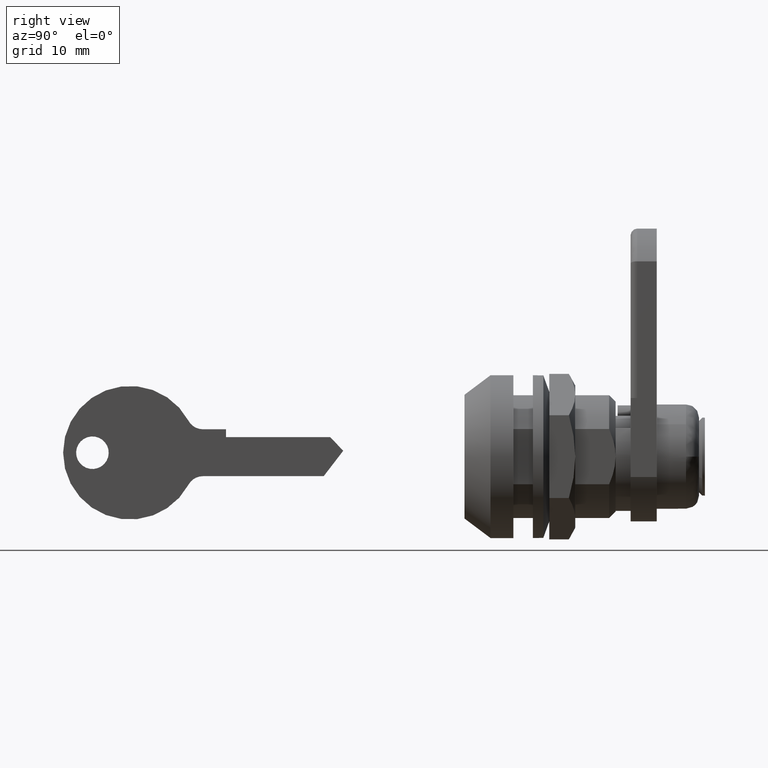
[diagram: clean part render]
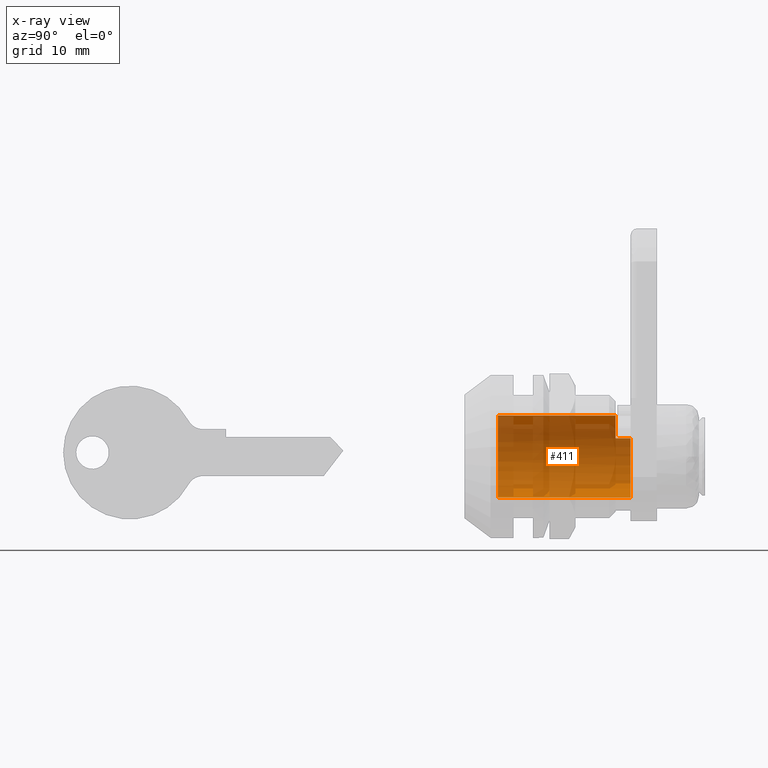
[diagram: x-ray — body ghosted, one internal face saturated and labeled with its STEP entity id]
A machine part, right view, then the same camera in x-ray: the body is ghosted and one INTERNAL B-rep face — a face not visible from any outside direction — is saturated and labeled: STEP entity #411.
In plain terms, the highlighted cylindrical surface (partial cylindrical patch) has radius 6.3 mm, axis along (0, 1, 0).
Its self-contained STEP definition (entity closure, byte-faithful):
#411=ADVANCED_FACE('',(#923),#922,.F.);
#922=CYLINDRICAL_SURFACE('',#2240,6.30000000000E+00);
#923=FACE_OUTER_BOUND('',#2241,.T.);
#2237=CARTESIAN_POINT('',(-3.85763751241E-16,1.52999999523E+01,-5.81473570944E-40));
#2238=DIRECTION('',(1.99376820150E-16,1.00000000000E+00,1.22083092311E-32));
#2239=DIRECTION('',(4.48593019107E-16,-7.72307404599E-32,-1.00000000000E+00));
#2240=AXIS2_PLACEMENT_3D('',#2237,#2238,#2239);
#2241=EDGE_LOOP('',(#3973,#3974,#3975,#3976,#3977,#3978));
#3973=ORIENTED_EDGE('',*,*,#4606,.T.);
#3974=ORIENTED_EDGE('',*,*,#4616,.T.);
#3975=ORIENTED_EDGE('',*,*,#4608,.F.);
#3976=ORIENTED_EDGE('',*,*,#4579,.F.);
#3977=ORIENTED_EDGE('',*,*,#4602,.F.);
#3978=ORIENTED_EDGE('',*,*,#4617,.F.);
#4579=EDGE_CURVE('',#5310,#5311,#5312,.T.);
#4602=EDGE_CURVE('',#5457,#5310,#5464,.T.);
#4606=EDGE_CURVE('',#5485,#5484,#5492,.T.);
#4608=EDGE_CURVE('',#5311,#5504,#5505,.T.);
#4616=EDGE_CURVE('',#5484,#5504,#5555,.T.);
#4617=EDGE_CURVE('',#5485,#5457,#5561,.T.);
#5310=VERTEX_POINT('',#7607);
#5311=VERTEX_POINT('',#7608);
#5312=LINE('',#7609,#7610);
#5457=VERTEX_POINT('',#7707);
#5464=CIRCLE('',#7715,6.30000000000E+00);
#5484=VERTEX_POINT('',#7726);
#5485=VERTEX_POINT('',#7727);
#5492=CIRCLE('',#7735,6.30000000000E+00);
#5504=VERTEX_POINT('',#7740);
#5505=CIRCLE('',#7744,6.30000000000E+00);
#5555=(BOUNDED_CURVE() B_SPLINE_CURVE(1,(#7767,#7768),.UNSPECIFIED.,.F.,.F.) B_SPLINE_CURVE_WITH_KNOTS((2,2),(8.33333328360E-02,9.16666665505E-01),.UNSPECIFIED.) CURVE() GEOMETRIC_REPRESENTATION_ITEM() RATIONAL_B_SPLINE_CURVE((1.00000000000E+00,1.00000000000E+00)) REPRESENTATION_ITEM('') );
#5561=(BOUNDED_CURVE() B_SPLINE_CURVE(1,(#7769,#7770),.UNSPECIFIED.,.F.,.F.) B_SPLINE_CURVE_WITH_KNOTS((2,2),(8.33333333333E-02,8.22712418301E-01),.UNSPECIFIED.) CURVE() GEOMETRIC_REPRESENTATION_ITEM() RATIONAL_B_SPLINE_CURVE((7.50000000000E-01,7.50000000000E-01)) REPRESENTATION_ITEM('') );
#7607=CARTESIAN_POINT('',(-5.63854782945E+00,2.32000000000E+01,2.81012070470E+00));
#7608=CARTESIAN_POINT('',(-5.63854782945E+00,2.55000000000E+01,2.81012070470E+00));
#7609=CARTESIAN_POINT('',(-5.63854782945E+00,2.32000000000E+01,2.81012070470E+00));
#7610=VECTOR('',#7611,2.30000000000E+00);
#7611=DIRECTION('',(0.00000000000E+00,1.00000000000E+00,0.00000000000E+00));
#7707=CARTESIAN_POINT('',(-1.16966903672E-07,2.32000000000E+01,6.30000000000E+00));
#7712=CARTESIAN_POINT('',(5.32907051820E-15,2.32000000000E+01,2.66453525910E-15));
#7713=DIRECTION('',(2.38975924991E-16,-1.00000000000E+00,-4.79508649182E-16));
#7714=DIRECTION('',(-8.95007591976E-01,-2.46519032882E-32,-4.46050905508E-01));
#7715=AXIS2_PLACEMENT_3D('',#7712,#7713,#7714);
#7726=CARTESIAN_POINT('',(-1.18423789293E-15,5.10000000000E+00,-6.30000000000E+00));
#7727=CARTESIAN_POINT('',(2.72726737930E-15,5.10000000000E+00,6.30000000000E+00));
#7732=CARTESIAN_POINT('',(3.85763741731E-16,5.10000000000E+00,0.00000000000E+00));
#7733=DIRECTION('',(4.98442050376E-17,-1.00000000000E+00,-1.24215052996E-32));
#7734=DIRECTION('',(2.49206608676E-16,-0.00000000000E+00,1.00000000000E+00));
#7735=AXIS2_PLACEMENT_3D('',#7732,#7733,#7734);
#7740=CARTESIAN_POINT('',(-3.41480169242E-08,2.55000000000E+01,-6.30000000000E+00));
#7741=CARTESIAN_POINT('',(7.10542735760E-15,2.55000000000E+01,7.32747196253E-15));
#7742=DIRECTION('',(5.04715192801E-16,-1.00000000000E+00,-2.51538278324E-16));
#7743=DIRECTION('',(-8.95007591976E-01,-5.63922806159E-16,4.46050905508E-01));
#7744=AXIS2_PLACEMENT_3D('',#7741,#7742,#7743);
#7767=CARTESIAN_POINT('',(4.06728710683E-16,5.09999998782E+00,-6.30000000000E+00));
#7768=CARTESIAN_POINT('',(4.47401583850E-15,2.54999999716E+01,-6.30000000000E+00));
#7769=CARTESIAN_POINT('',(-5.20571240435E-15,5.10000000000E+00,6.30000000000E+00));
#7770=CARTESIAN_POINT('',(-1.48440930330E-15,2.32000000000E+01,6.30000000000E+00));